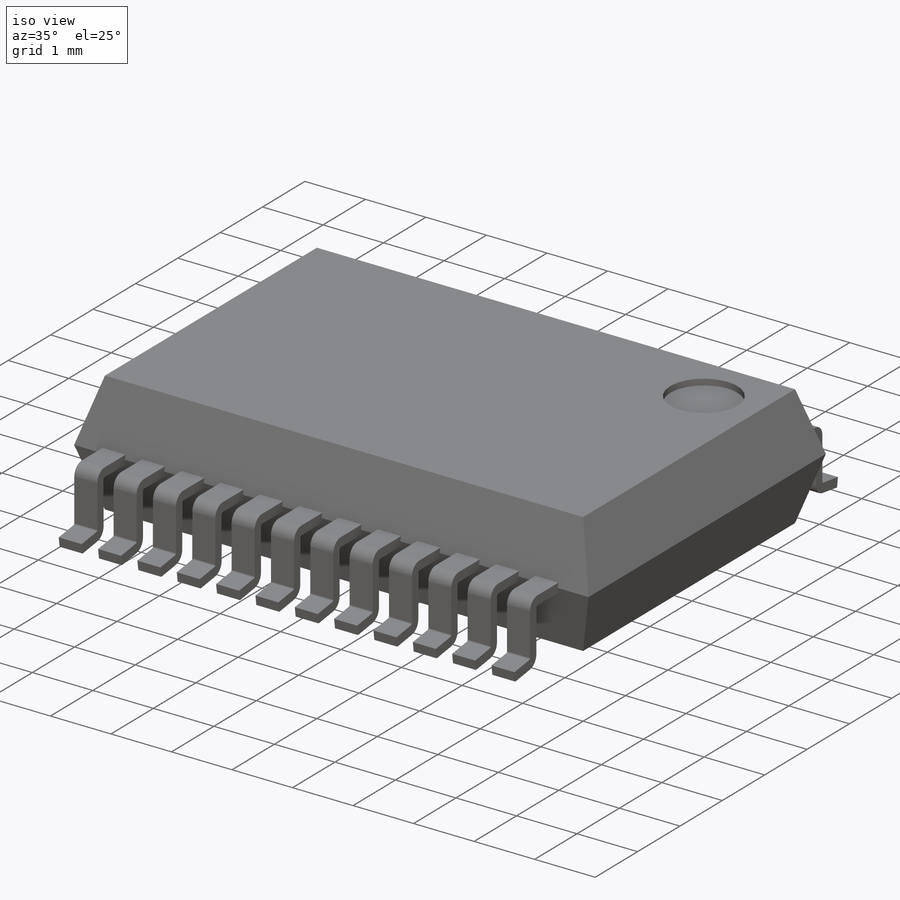
[diagram: iso view]
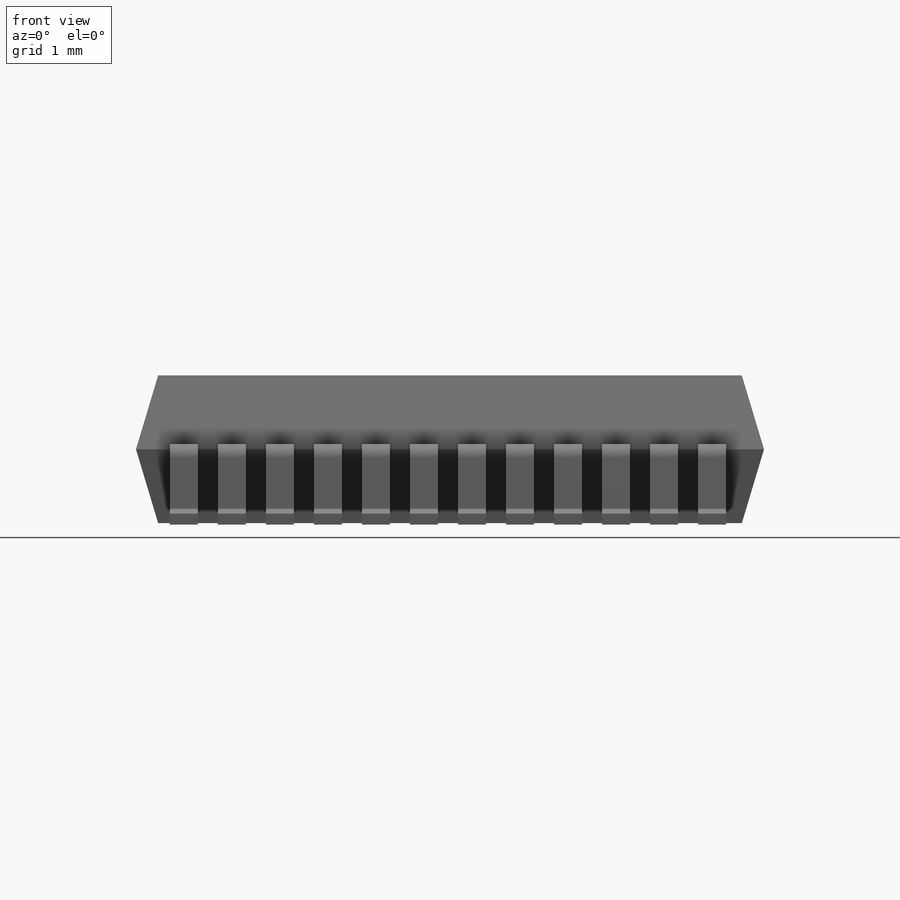
[diagram: front view]
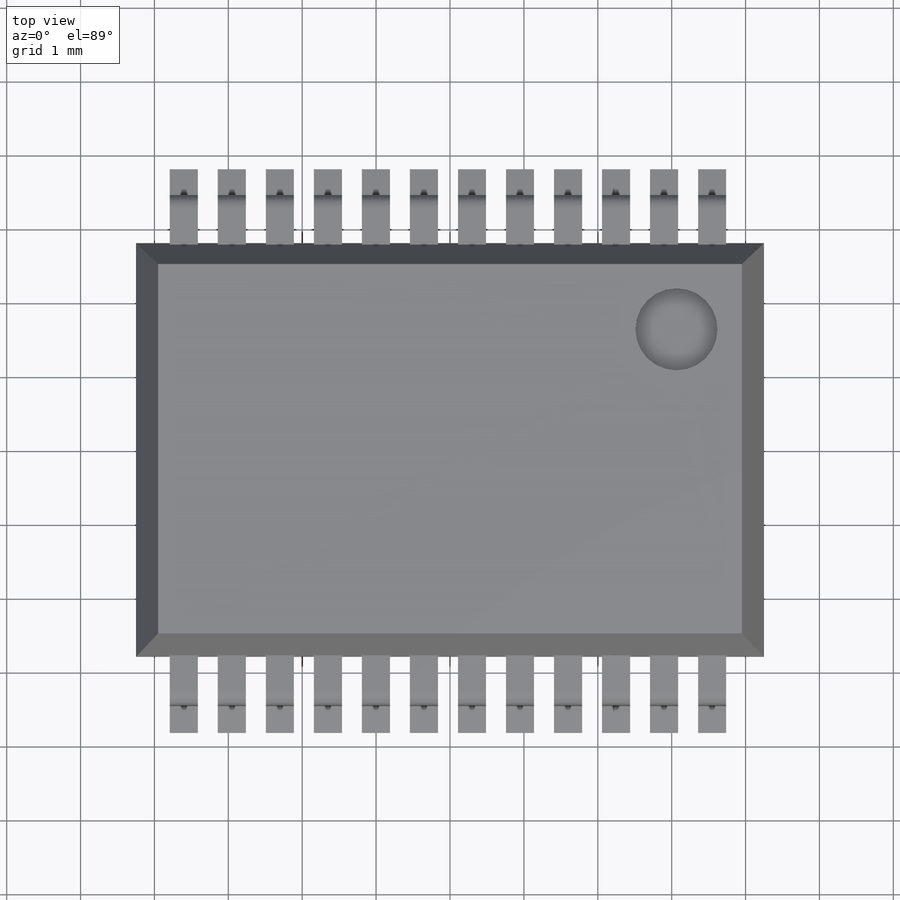
[diagram: top view]
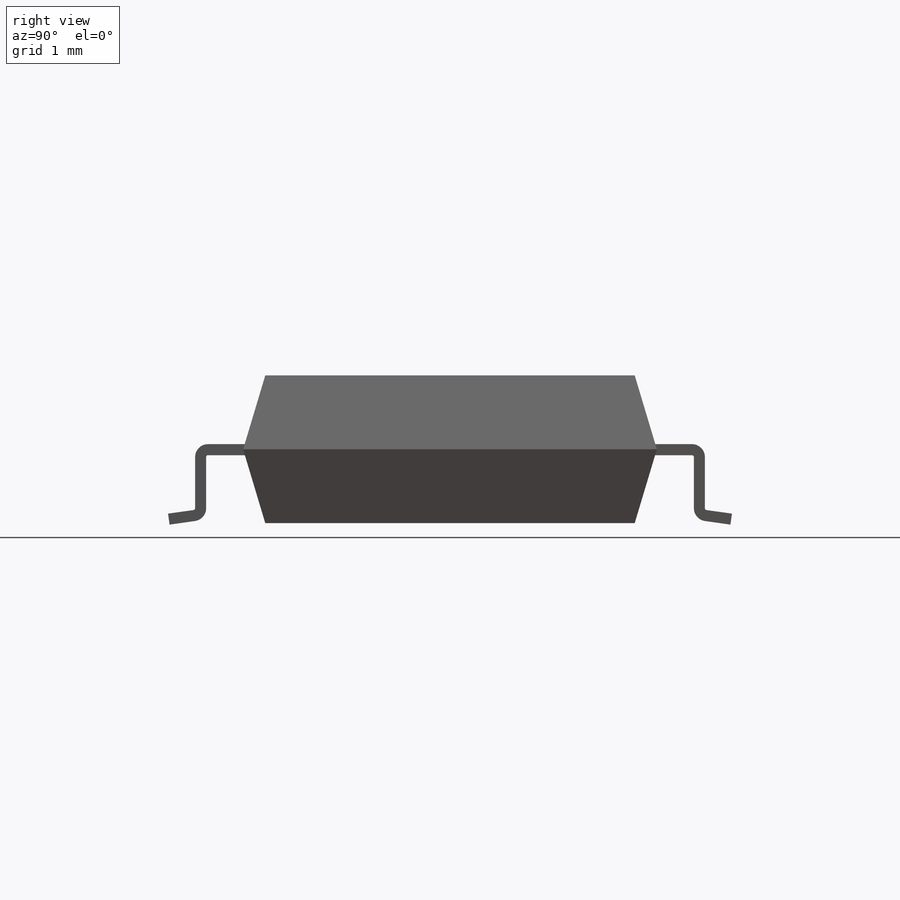
[diagram: right view]
SOLIDWORKS PART (.sldprt)
format: sldprt  version: not decoded by parser v0  size: 1,960,960 bytes
history: native  units: mm
features: sketch x112, pattern_linear x104, sheet_metal_op x55, mirror x53, plane x3, chamfer x2, material x1, extrude x1, cut_extrude x1 + 106 further entries (+13 scaffold rows collapsed; 53 parser-record rows omitted)
feature tree (504):
  scaffold x13  (default folders/planes/origin — collapsed)
  material  "Material <not specified>"
  sketch  "Sketch1"  dims[D1=8.5mm D2=5.6mm]
  extrude  "Boss-Extrude1"  Depth=1mm
  chamfer  "Chamfer2"  Distance=0.3mm
  chamfer  "Chamfer5"  Distance=1mm
  plane  "Plane3"
  plane  "Plane4"  Offset=0.1625mm
  sketch  "Sketch81"
  sketch  "Sketch6"  dims[c1.D1=0.529mm c1.D2=0.87mm c1.D3=~0.466648mm c2.D3=~239.288182deg c3.D3=~4572.76264mm c3.D4=0.5mm c3.D1=0.025mm c3.D2=0.5 c4.D3=0.0deg c4.D6=~28.64789deg]
  sheet_metal_op  "Base-Flange3"
  sheet_metal_op  "BaseBend6"
  pattern_linear  "LPattern2"  Count1=1 Spacing1=0.025mm Spacing2=1431.169987mm
  pattern_linear  "DerivedBend72"  Count1=2 Spacing1=0.025mm Spacing2=1570.796327mm
  pattern_linear  "DerivedBend73"  Count1=1 Spacing1=0.025mm Spacing2=1431.169987mm
  pattern_linear  "DerivedBend74"  Count1=2 Spacing1=0.025mm Spacing2=1570.796327mm
  pattern_linear  "DerivedBend75"  Count1=1 Spacing1=0.025mm Spacing2=1431.169987mm
  pattern_linear  "DerivedBend76"  Count1=2 Spacing1=0.025mm Spacing2=1570.796327mm
  pattern_linear  "DerivedBend77"  Count1=1 Spacing1=0.025mm Spacing2=1431.169987mm
  pattern_linear  "DerivedBend78"  Count1=2 Spacing1=0.025mm Spacing2=1570.796327mm
  pattern_linear  "DerivedBend79"  Count1=1 Spacing1=0.025mm Spacing2=1431.169987mm
  pattern_linear  "DerivedBend80"  Count1=2 Spacing1=0.025mm Spacing2=1570.796327mm
  pattern_linear  "DerivedBend81"  Count1=1 Spacing1=0.025mm Spacing2=1431.169987mm
  pattern_linear  "DerivedBend82"  Count1=2 Spacing1=0.025mm Spacing2=1570.796327mm
  pattern_linear  "DerivedBend83"  Count1=1 Spacing1=0.025mm Spacing2=1431.169987mm
  pattern_linear  "DerivedBend84"  Count1=2 Spacing1=0.025mm Spacing2=1570.796327mm
  pattern_linear  "DerivedBend85"  Count1=1 Spacing1=0.025mm Spacing2=1431.169987mm
  pattern_linear  "DerivedBend86"  Count1=2 Spacing1=0.025mm Spacing2=1570.796327mm
  pattern_linear  "DerivedBend87"  Count1=1 Spacing1=0.025mm Spacing2=1431.169987mm
  pattern_linear  "DerivedBend88"  Count1=2 Spacing1=0.025mm Spacing2=1570.796327mm
  pattern_linear  "DerivedBend89"  Count1=1 Spacing1=0.025mm Spacing2=1431.169987mm
  pattern_linear  "DerivedBend90"  Count1=2 Spacing1=0.025mm Spacing2=1570.796327mm
  pattern_linear  "DerivedBend91"  Count1=1 Spacing1=0.025mm Spacing2=1431.169987mm
  pattern_linear  "DerivedBend92"  Count1=2 Spacing1=0.025mm Spacing2=1570.796327mm
  pattern_linear  "DerivedBend93"  Count1=1 Spacing1=0.025mm Spacing2=1431.169987mm
  pattern_linear  "DerivedBend94"  Count1=2 Spacing1=0.025mm Spacing2=1570.796327mm
  pattern_linear  "DerivedBend95"  Count1=1 Spacing1=0.025mm Spacing2=1431.169987mm
  pattern_linear  "DerivedBend96"  Count1=2 Spacing1=0.025mm Spacing2=1570.796327mm
  pattern_linear  "DerivedBend97"  Count1=1 Spacing1=0.025mm Spacing2=1431.169987mm
  pattern_linear  "DerivedBend98"  Count1=2 Spacing1=0.025mm Spacing2=1570.796327mm
  pattern_linear  "DerivedBend99"  Count1=1 Spacing1=0.025mm Spacing2=1431.169987mm
  pattern_linear  "DerivedBend100"  Count1=2 Spacing1=0.025mm Spacing2=1570.796327mm
  pattern_linear  "DerivedBend101"  Count1=1 Spacing1=0.025mm Spacing2=1431.169987mm
  pattern_linear  "DerivedBend102"  Count1=2 Spacing1=0.025mm Spacing2=1570.796327mm
  pattern_linear  "DerivedBend103"  Count1=1 Spacing1=0.025mm Spacing2=1431.169987mm
  pattern_linear  "DerivedBend104"  Count1=2 Spacing1=0.025mm Spacing2=1570.796327mm
  pattern_linear  "DerivedBend105"  Count1=1 Spacing1=0.025mm Spacing2=1431.169987mm
  pattern_linear  "DerivedBend106"  Count1=2 Spacing1=0.025mm Spacing2=1570.796327mm
  pattern_linear  "DerivedBend107"  Count1=1 Spacing1=0.025mm Spacing2=1431.169987mm
  pattern_linear  "DerivedBend108"  Count1=2 Spacing1=0.025mm Spacing2=1570.796327mm
  pattern_linear  "DerivedBend109"  Count1=1 Spacing1=0.025mm Spacing2=1431.169987mm
  pattern_linear  "DerivedBend110"  Count1=2 Spacing1=0.025mm Spacing2=1570.796327mm
  pattern_linear  "DerivedBend111"  Count1=1 Spacing1=0.025mm Spacing2=1431.169987mm
  pattern_linear  "DerivedBend112"  Count1=2 Spacing1=0.025mm Spacing2=1570.796327mm
  pattern_linear  "DerivedBend113"  Count1=1 Spacing1=0.025mm Spacing2=1431.169987mm
  pattern_linear  "DerivedBend114"  Count1=2 Spacing1=0.025mm Spacing2=1570.796327mm
  pattern_linear  "DerivedBend115"  Count1=1 Spacing1=0.025mm Spacing2=1431.169987mm
  pattern_linear  "DerivedBend116"  Count1=2 Spacing1=0.025mm Spacing2=1570.796327mm
  pattern_linear  "DerivedBend117"  Count1=1 Spacing1=0.025mm Spacing2=1431.169987mm
  pattern_linear  "DerivedBend118"  Count1=2 Spacing1=0.025mm Spacing2=1570.796327mm
  pattern_linear  "DerivedBend119"  Count1=1 Spacing1=0.025mm Spacing2=1431.169987mm
  pattern_linear  "DerivedBend120"  Count1=2 Spacing1=0.025mm Spacing2=1570.796327mm
  pattern_linear  "DerivedBend121"  Count1=1 Spacing1=0.025mm Spacing2=1431.169987mm
  pattern_linear  "DerivedBend122"  Count1=2 Spacing1=0.025mm Spacing2=1570.796327mm
  pattern_linear  "DerivedBend123"  Count1=1 Spacing1=0.025mm Spacing2=1431.169987mm
  pattern_linear  "DerivedBend124"  Count1=2 Spacing1=0.025mm Spacing2=1570.796327mm
  pattern_linear  "DerivedBend125"  Count1=1 Spacing1=0.025mm Spacing2=1431.169987mm
  pattern_linear  "DerivedBend126"  Count1=2 Spacing1=0.025mm Spacing2=1570.796327mm
  pattern_linear  "DerivedBend127"  Count1=1 Spacing1=0.025mm Spacing2=1431.169987mm
  pattern_linear  "DerivedBend128"  Count1=2 Spacing1=0.025mm Spacing2=1570.796327mm
  pattern_linear  "DerivedBend129"  Count1=1 Spacing1=0.025mm Spacing2=1431.169987mm
  pattern_linear  "DerivedBend130"  Count1=2 Spacing1=0.025mm Spacing2=1570.796327mm
  pattern_linear  "DerivedBend131"  Count1=1 Spacing1=0.025mm Spacing2=1431.169987mm
  pattern_linear  "DerivedBend132"  Count1=2 Spacing1=0.025mm Spacing2=1570.796327mm
  pattern_linear  "DerivedBend133"  Count1=1 Spacing1=0.025mm Spacing2=1431.169987mm
  pattern_linear  "DerivedBend134"  Count1=2 Spacing1=0.025mm Spacing2=1570.796327mm
  pattern_linear  "DerivedBend135"  Count1=1 Spacing1=0.025mm Spacing2=1431.169987mm
  pattern_linear  "DerivedBend136"  Count1=2 Spacing1=0.025mm Spacing2=1570.796327mm
  pattern_linear  "DerivedBend137"  Count1=1 Spacing1=0.025mm Spacing2=1431.169987mm
  pattern_linear  "DerivedBend138"  Count1=2 Spacing1=0.025mm Spacing2=1570.796327mm
  pattern_linear  "DerivedBend139"  Count1=1 Spacing1=0.025mm Spacing2=1431.169987mm
  pattern_linear  "DerivedBend140"  Count1=2 Count2=7 Spacing1=0.025mm Spacing2=1570.796327mm
  plane  "Plane2"
  mirror  "Mirror1"
  pattern_linear  "DerivedBend151"  Count1=1 Spacing1=0.025mm Spacing2=1431.169987mm
  pattern_linear  "DerivedBend152"  Count1=2 Spacing1=0.025mm Spacing2=1570.796327mm
  pattern_linear  "DerivedBend153"  Count1=1 Spacing1=0.025mm Spacing2=1431.169987mm
  pattern_linear  "DerivedBend154"  Count1=2 Spacing1=0.025mm Spacing2=1570.796327mm
  pattern_linear  "DerivedBend155"  Count1=1 Spacing1=0.025mm Spacing2=1431.169987mm
  pattern_linear  "DerivedBend156"  Count1=2 Spacing1=0.025mm Spacing2=1570.796327mm
  pattern_linear  "DerivedBend157"  Count1=1 Spacing1=0.025mm Spacing2=1431.169987mm
  pattern_linear  "DerivedBend158"  Count1=2 Spacing1=0.025mm Spacing2=1570.796327mm
  pattern_linear  "DerivedBend159"  Count1=1 Spacing1=0.025mm Spacing2=1431.169987mm
  pattern_linear  "DerivedBend160"  Count1=2 Spacing1=0.025mm Spacing2=1570.796327mm
  pattern_linear  "DerivedBend161"  Count1=1 Spacing1=0.025mm Spacing2=1431.169987mm
  pattern_linear  "DerivedBend162"  Count1=2 Spacing1=0.025mm Spacing2=1570.796327mm
  pattern_linear  "DerivedBend163"  Count1=3 Spacing1=0.025mm Spacing2=1431.169987mm
  pattern_linear  "DerivedBend164"  Count1=4 Spacing1=0.025mm Spacing2=1570.796327mm
  pattern_linear  "DerivedBend165"  Count1=3 Spacing1=0.025mm Spacing2=1431.169987mm
  pattern_linear  "DerivedBend166"  Count1=4 Spacing1=0.025mm Spacing2=1570.796327mm
  pattern_linear  "DerivedBend167"  Count1=3 Spacing1=0.025mm Spacing2=1431.169987mm
  pattern_linear  "DerivedBend168"  Count1=4 Spacing1=0.025mm Spacing2=1570.796327mm
  pattern_linear  "DerivedBend169"  Count1=3 Spacing1=0.025mm Spacing2=1431.169987mm
  pattern_linear  "DerivedBend170"  Count1=4 Spacing1=0.025mm Spacing2=1570.796327mm
  pattern_linear  "DerivedBend171"  Count1=3 Spacing1=0.025mm Spacing2=1431.169987mm
  pattern_linear  "DerivedBend172"  Count1=4 Spacing1=0.025mm Spacing2=1570.796327mm
  pattern_linear  "DerivedBend173"  Count1=1 Spacing1=0.025mm Spacing2=1431.169987mm
  pattern_linear  "DerivedBend174"  Count1=2 Spacing1=0.025mm Spacing2=1570.796327mm
  pattern_linear  "DerivedBend175"  Count1=1 Spacing1=0.025mm Spacing2=1431.169987mm
  pattern_linear  "DerivedBend176"  Count1=2 Spacing1=0.025mm Spacing2=1570.796327mm
  pattern_linear  "DerivedBend177"  Count1=1 Spacing1=0.025mm Spacing2=1431.169987mm
  pattern_linear  "DerivedBend178"  Count1=2 Spacing1=0.025mm Spacing2=1570.796327mm
  pattern_linear  "DerivedBend179"  Count1=1 Spacing1=0.025mm Spacing2=1431.169987mm
  pattern_linear  "DerivedBend180"  Count1=2 Spacing1=0.025mm Spacing2=1570.796327mm
  pattern_linear  "DerivedBend181"  Count1=1 Spacing1=0.025mm Spacing2=1431.169987mm
  pattern_linear  "DerivedBend182"  Count1=2 Spacing1=0.025mm Spacing2=1570.796327mm
  pattern_linear  "DerivedBend183"  Count1=1 Spacing1=0.025mm Spacing2=1431.169987mm
  pattern_linear  "DerivedBend184"  Count1=2 Spacing1=0.025mm Spacing2=1570.796327mm
  sketch  "Sketch104"  dims[D1=~0.859469mm]
  cut_extrude  "Cut-Extrude2"  Depth=0.1mm
  sketch  "Bend-Lines40"
  sketch  "Bounding-Box40"
  sheet_metal_op  "Sheet-Metal64"
  "Flat-Pattern64"
  sketch  "Bend-Lines41"
  sketch  "Bounding-Box41"
  parser-record x53  (decoder bookkeeping rows leaked as tree rows — omitted from the tree; the rows remain in map.json)
  "Flatten-<BaseBend6>1"
  mirror  "Sheet-Metal65"
  sheet_metal_op  "Flat-Pattern65"
  sketch  "Bend-Lines42"
  sketch  "Bounding-Box42"
  "Flatten-<DerivedBend71>1"
  "Flatten-<DerivedBend72>1"
  mirror  "Sheet-Metal66"
  sheet_metal_op  "Flat-Pattern66"
  sketch  "Bend-Lines43"
  sketch  "Bounding-Box43"
  "Flatten-<DerivedBend73>1"
  "Flatten-<DerivedBend74>1"
  mirror  "Sheet-Metal67"
  sheet_metal_op  "Flat-Pattern67"
  sketch  "Bend-Lines44"
  sketch  "Bounding-Box44"
  "Flatten-<DerivedBend75>1"
  "Flatten-<DerivedBend76>1"
  mirror  "Sheet-Metal68"
  sheet_metal_op  "Flat-Pattern68"
  sketch  "Bend-Lines45"
  sketch  "Bounding-Box45"
  "Flatten-<DerivedBend77>1"
  "Flatten-<DerivedBend78>1"
  mirror  "Sheet-Metal69"
  sheet_metal_op  "Flat-Pattern69"
  sketch  "Bend-Lines46"
  sketch  "Bounding-Box46"
  "Flatten-<DerivedBend79>1"
  "Flatten-<DerivedBend80>1"
  mirror  "Sheet-Metal70"
  sheet_metal_op  "Flat-Pattern70"
  sketch  "Bend-Lines47"
  sketch  "Bounding-Box47"
  "Flatten-<DerivedBend81>1"
  "Flatten-<DerivedBend82>1"
  mirror  "Sheet-Metal71"
  sheet_metal_op  "Flat-Pattern71"
  sketch  "Bend-Lines48"
  sketch  "Bounding-Box48"
  "Flatten-<DerivedBend83>1"
  "Flatten-<DerivedBend84>1"
  mirror  "Sheet-Metal72"
  sheet_metal_op  "Flat-Pattern72"
  sketch  "Bend-Lines49"
  sketch  "Bounding-Box49"
  "Flatten-<DerivedBend85>1"
  "Flatten-<DerivedBend86>1"
  mirror  "Sheet-Metal73"
  sheet_metal_op  "Flat-Pattern73"
  sketch  "Bend-Lines50"
  sketch  "Bounding-Box50"
  "Flatten-<DerivedBend87>1"
  "Flatten-<DerivedBend88>1"
  mirror  "Sheet-Metal74"
  sheet_metal_op  "Flat-Pattern74"
  sketch  "Bend-Lines51"
  sketch  "Bounding-Box51"
  "Flatten-<DerivedBend89>1"
  "Flatten-<DerivedBend90>1"
  mirror  "Sheet-Metal75"
  sheet_metal_op  "Flat-Pattern75"
  sketch  "Bend-Lines52"
  sketch  "Bounding-Box52"
  "Flatten-<DerivedBend91>1"
  "Flatten-<DerivedBend92>1"
  mirror  "Sheet-Metal76"
  sheet_metal_op  "Flat-Pattern76"
  sketch  "Bend-Lines53"
  sketch  "Bounding-Box53"
  "Flatten-<DerivedBend93>1"
  "Flatten-<DerivedBend94>1"
  mirror  "Sheet-Metal77"
  sheet_metal_op  "Flat-Pattern77"
  sketch  "Bend-Lines54"
  sketch  "Bounding-Box54"
  "Flatten-<DerivedBend95>1"
  "Flatten-<DerivedBend96>1"
  mirror  "Sheet-Metal78"
  sheet_metal_op  "Flat-Pattern78"
  sketch  "Bend-Lines55"
  sketch  "Bounding-Box55"
  "Flatten-<DerivedBend97>1"
  "Flatten-<DerivedBend98>1"
  mirror  "Sheet-Metal79"
  sheet_metal_op  "Flat-Pattern79"
  sketch  "Bend-Lines56"
  sketch  "Bounding-Box56"
  "Flatten-<DerivedBend99>1"
  "Flatten-<DerivedBend100>1"
  mirror  "Sheet-Metal80"
  sheet_metal_op  "Flat-Pattern80"
  sketch  "Bend-Lines57"
  sketch  "Bounding-Box57"
  "Flatten-<DerivedBend101>1"
  "Flatten-<DerivedBend102>1"
  mirror  "Sheet-Metal81"
  sheet_metal_op  "Flat-Pattern81"
  sketch  "Bend-Lines58"
  sketch  "Bounding-Box58"
  "Flatten-<DerivedBend103>1"
  "Flatten-<DerivedBend104>1"
  mirror  "Sheet-Metal82"
  sheet_metal_op  "Flat-Pattern82"
  sketch  "Bend-Lines59"
  sketch  "Bounding-Box59"
  "Flatten-<DerivedBend105>1"
  "Flatten-<DerivedBend106>1"
  mirror  "Sheet-Metal83"
  sheet_metal_op  "Flat-Pattern83"
  sketch  "Bend-Lines60"
  sketch  "Bounding-Box60"
  "Flatten-<DerivedBend107>1"
  "Flatten-<DerivedBend108>1"
  mirror  "Sheet-Metal84"
  sheet_metal_op  "Flat-Pattern84"
  sketch  "Bend-Lines61"
  sketch  "Bounding-Box61"
  "Flatten-<DerivedBend109>1"
  "Flatten-<DerivedBend110>1"
  mirror  "Sheet-Metal85"
  sheet_metal_op  "Flat-Pattern85"
  sketch  "Bend-Lines62"
  sketch  "Bounding-Box62"
  "Flatten-<DerivedBend111>1"
  "Flatten-<DerivedBend112>1"
  mirror  "Sheet-Metal86"
  sheet_metal_op  "Flat-Pattern86"
  sketch  "Bend-Lines63"
  sketch  "Bounding-Box63"
  "Flatten-<DerivedBend113>1"
  "Flatten-<DerivedBend114>1"
  mirror  "Sheet-Metal87"
  sheet_metal_op  "Flat-Pattern87"
  sketch  "Bend-Lines64"
  sketch  "Bounding-Box64"
  "Flatten-<DerivedBend115>1"
  "Flatten-<DerivedBend116>1"
  mirror  "Sheet-Metal88"
  sheet_metal_op  "Flat-Pattern88"
  sketch  "Bend-Lines65"
  sketch  "Bounding-Box65"
  "Flatten-<DerivedBend117>1"
  "Flatten-<DerivedBend118>1"
  mirror  "Sheet-Metal89"
  sheet_metal_op  "Flat-Pattern89"
  sketch  "Bend-Lines66"
  sketch  "Bounding-Box66"
  "Flatten-<DerivedBend119>1"
  "Flatten-<DerivedBend120>1"
  mirror  "Sheet-Metal90"
  sheet_metal_op  "Flat-Pattern90"
  sketch  "Bend-Lines67"
  sketch  "Bounding-Box67"
  "Flatten-<DerivedBend121>1"
  "Flatten-<DerivedBend122>1"
  mirror  "Sheet-Metal91"
  sheet_metal_op  "Flat-Pattern91"
  sketch  "Bend-Lines68"
  sketch  "Bounding-Box68"
  "Flatten-<DerivedBend123>1"
  "Flatten-<DerivedBend124>1"
  mirror  "Sheet-Metal92"
  sheet_metal_op  "Flat-Pattern92"
  sketch  "Bend-Lines69"
  sketch  "Bounding-Box69"
  "Flatten-<DerivedBend125>1"
  "Flatten-<DerivedBend126>1"
  mirror  "Sheet-Metal93"
  sheet_metal_op  "Flat-Pattern93"
  sketch  "Bend-Lines70"
  sketch  "Bounding-Box70"
  "Flatten-<DerivedBend127>1"
  "Flatten-<DerivedBend128>1"
  mirror  "Sheet-Metal94"
  sheet_metal_op  "Flat-Pattern94"
  sketch  "Bend-Lines71"
  sketch  "Bounding-Box71"
  "Flatten-<DerivedBend129>1"
  "Flatten-<DerivedBend130>1"
  mirror  "Sheet-Metal95"
  sheet_metal_op  "Flat-Pattern95"
  sketch  "Bend-Lines72"
  sketch  "Bounding-Box72"
  "Flatten-<DerivedBend131>1"
  "Flatten-<DerivedBend132>1"
  mirror  "Sheet-Metal96"
  sheet_metal_op  "Flat-Pattern96"
  sketch  "Bend-Lines73"
  sketch  "Bounding-Box73"
  "Flatten-<DerivedBend133>1"
  "Flatten-<DerivedBend134>1"
  mirror  "Sheet-Metal97"
  sheet_metal_op  "Flat-Pattern97"
  sketch  "Bend-Lines74"
  sketch  "Bounding-Box74"
  "Flatten-<DerivedBend135>1"
  "Flatten-<DerivedBend136>1"
  mirror  "Sheet-Metal98"
  sheet_metal_op  "Flat-Pattern98"
  sketch  "Bend-Lines75"
  sketch  "Bounding-Box75"
  "Flatten-<DerivedBend137>1"
  "Flatten-<DerivedBend138>1"
  mirror  "Sheet-Metal99"
  sheet_metal_op  "Flat-Pattern99"
  sketch  "Bend-Lines76"
  sketch  "Bounding-Box76"
  "Flatten-<DerivedBend139>1"
  "Flatten-<DerivedBend140>1"
  mirror  "Sheet-Metal100"
  sheet_metal_op  "Flat-Pattern100"
  sketch  "Bend-Lines77"
  sketch  "Bounding-Box77"
  "Flatten-<DerivedBend163>1"
  "Flatten-<DerivedBend164>1"
  mirror  "Sheet-Metal101"
  sheet_metal_op  "Flat-Pattern101"
  sketch  "Bend-Lines78"
  sketch  "Bounding-Box78"
  "Flatten-<DerivedBend165>1"
  "Flatten-<DerivedBend166>1"
  mirror  "Sheet-Metal102"
  sheet_metal_op  "Flat-Pattern102"
  sketch  "Bend-Lines79"
  sketch  "Bounding-Box79"
  "Flatten-<DerivedBend167>1"
  "Flatten-<DerivedBend168>1"
  mirror  "Sheet-Metal103"
  sheet_metal_op  "Flat-Pattern103"
  sketch  "Bend-Lines80"
  sketch  "Bounding-Box80"
  "Flatten-<DerivedBend169>1"
  "Flatten-<DerivedBend170>1"
  mirror  "Sheet-Metal104"
  sheet_metal_op  "Flat-Pattern104"
  sketch  "Bend-Lines81"
  sketch  "Bounding-Box81"
  "Flatten-<DerivedBend171>1"
  "Flatten-<DerivedBend172>1"
  mirror  "Sheet-Metal105"
  sheet_metal_op  "Flat-Pattern105"
  sketch  "Bend-Lines82"
  sketch  "Bounding-Box82"
  "Flatten-<DerivedBend151>1"
  "Flatten-<DerivedBend152>1"
  mirror  "Sheet-Metal106"
  sheet_metal_op  "Flat-Pattern106"
  sketch  "Bend-Lines83"
  sketch  "Bounding-Box83"
  "Flatten-<DerivedBend153>1"
  "Flatten-<DerivedBend154>1"
  mirror  "Sheet-Metal107"
  sheet_metal_op  "Flat-Pattern107"
  sketch  "Bend-Lines84"
  sketch  "Bounding-Box84"
  "Flatten-<DerivedBend155>1"
  "Flatten-<DerivedBend156>1"
  mirror  "Sheet-Metal108"
  sheet_metal_op  "Flat-Pattern108"
  sketch  "Bend-Lines85"
  sketch  "Bounding-Box85"
  "Flatten-<DerivedBend157>1"
  "Flatten-<DerivedBend158>1"
  mirror  "Sheet-Metal109"
  sheet_metal_op  "Flat-Pattern109"
  sketch  "Bend-Lines86"
  sketch  "Bounding-Box86"
  "Flatten-<DerivedBend159>1"
  "Flatten-<DerivedBend160>1"
  mirror  "Sheet-Metal110"
  sheet_metal_op  "Flat-Pattern110"
  sketch  "Bend-Lines87"
  sketch  "Bounding-Box87"
  "Flatten-<DerivedBend161>1"
  "Flatten-<DerivedBend162>1"
  mirror  "Sheet-Metal113"
  sheet_metal_op  "Flat-Pattern113"
  sketch  "Bend-Lines88"
  sketch  "Bounding-Box88"
  "Flatten-<DerivedBend173>1"
  "Flatten-<DerivedBend174>1"
  mirror  "Sheet-Metal114"
  sheet_metal_op  "Flat-Pattern114"
  sketch  "Bend-Lines89"
  sketch  "Bounding-Box89"
  "Flatten-<DerivedBend175>1"
  "Flatten-<DerivedBend176>1"
  mirror  "Sheet-Metal115"
  sheet_metal_op  "Flat-Pattern115"
  sketch  "Bend-Lines90"
  sketch  "Bounding-Box90"
  "Flatten-<DerivedBend177>1"
  "Flatten-<DerivedBend178>1"
  mirror  "Sheet-Metal116"
  sheet_metal_op  "Flat-Pattern116"
  sketch  "Bend-Lines91"
  sketch  "Bounding-Box91"
  "Flatten-<DerivedBend179>1"
  "Flatten-<DerivedBend180>1"
  mirror  "Sheet-Metal117"
  sheet_metal_op  "Flat-Pattern117"
  sketch  "Bend-Lines92"
  sketch  "Bounding-Box92"
  "Flatten-<DerivedBend181>1"
  "Flatten-<DerivedBend182>1"
  mirror  "Sheet-Metal118"
  sheet_metal_op  "Flat-Pattern118"
  sketch  "Bend-Lines93"
  sketch  "Bounding-Box93"
  "Flatten-<DerivedBend183>1"
  "Flatten-<DerivedBend184>1"
decode coverage: 111 of 328 modeling features carry decoded parameters; 106 rows unclassified (native names shown)
note: ~ marks probable driven/reference dimensions
note: suppression state not decoded; provenance and decode notes live in map.json
